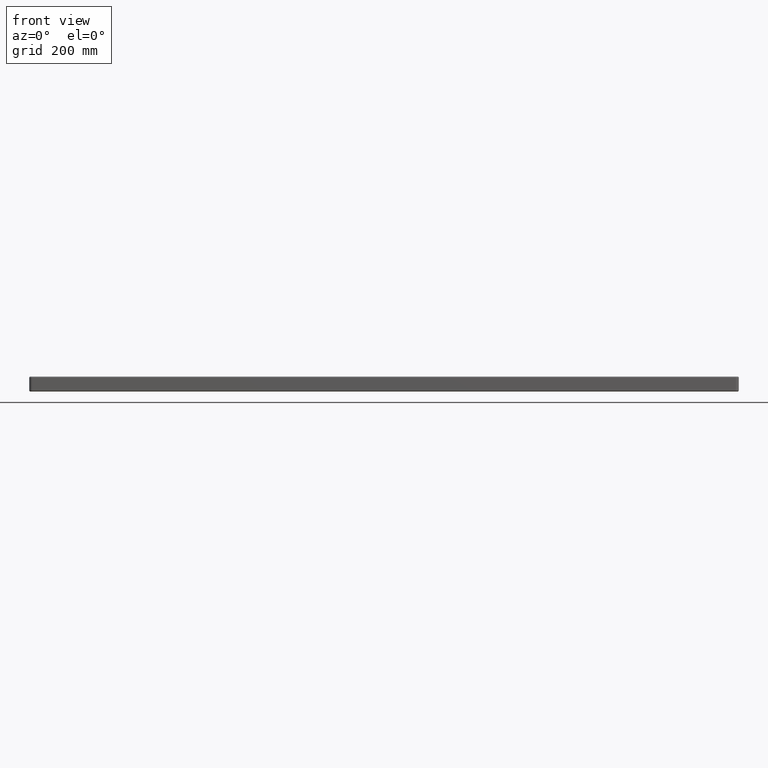
[diagram: clean part render]
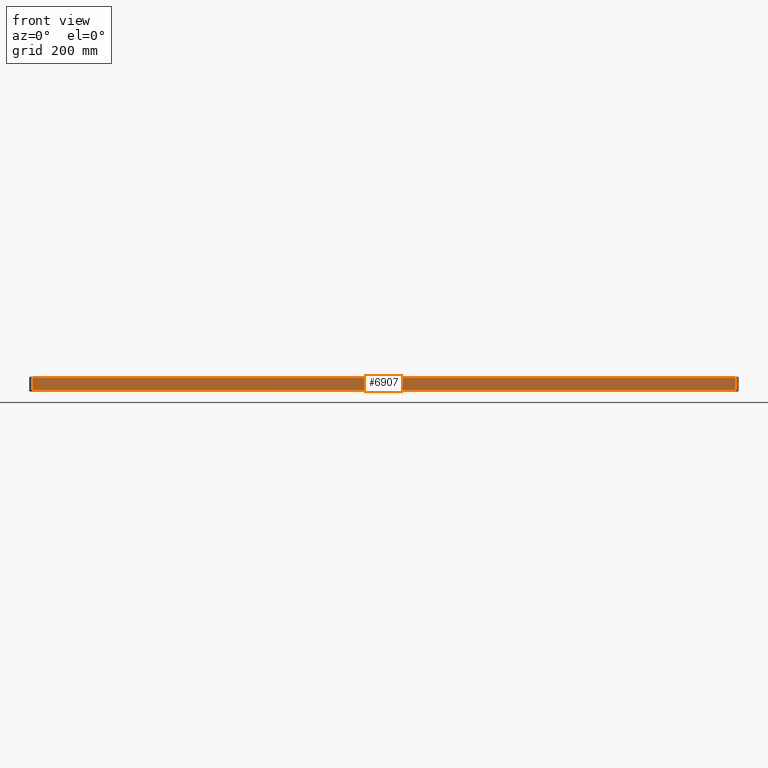
[diagram: same view with one face highlighted and labeled with its STEP entity id]
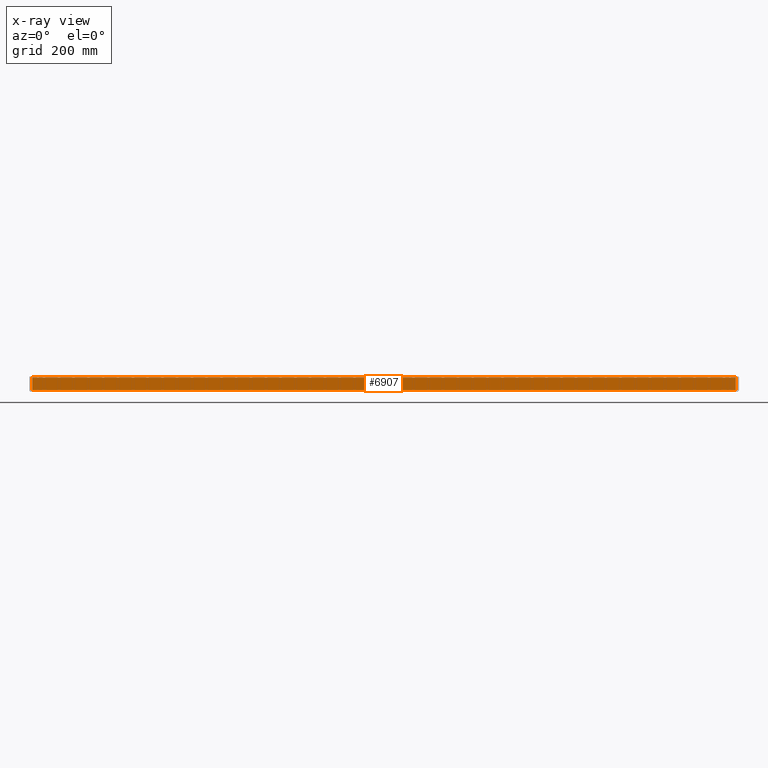
[diagram: x-ray of the same camera — body ghosted, the highlighted face saturated]
A machine part, front view. The second image highlights one B-rep face of the part: STEP entity #6907.
The next image is the same camera in x-ray: the body ghosted, the highlighted face saturated — about 0% of this face is hidden behind the body in this view.
In plain terms, the highlighted planar face has unit normal (0, -1, 0).
Its self-contained STEP definition (entity closure, byte-faithful):
#1188 = VERTEX_POINT ( 'NONE', #36521 ) ;
#1227 = FACE_OUTER_BOUND ( 'NONE', #1305, .T. ) ;
#1279 = EDGE_CURVE ( 'NONE', #28596, #35464, #17304, .T. ) ;
#1305 = EDGE_LOOP ( 'NONE', ( #32418, #16003, #16517, #27320 ) ) ;
#1317 = VERTEX_POINT ( 'NONE', #22418 ) ;
#2954 = CARTESIAN_POINT ( 'NONE',  ( 5.000000000000000000, 0.0000000000000000000, -23.39999999999999900 ) ) ;
#3201 = VECTOR ( 'NONE', #8951, 1000.000000000000000 ) ;
#4222 = DIRECTION ( 'NONE',  ( -0.0000000000000000000, 0.0000000000000000000, 1.000000000000000000 ) ) ;
#5048 = EDGE_CURVE ( 'NONE', #1317, #1188, #7635, .T. ) ;
#5749 = PLANE ( 'NONE',  #19468 ) ;
#6671 = EDGE_CURVE ( 'NONE', #35464, #1317, #9479, .T. ) ;
#6907 = ADVANCED_FACE ( 'NONE', ( #1227 ), #5749, .T. ) ;
#7635 = LINE ( 'NONE', #32059, #15388 ) ;
#8854 = CARTESIAN_POINT ( 'NONE',  ( 0.0000000000000000000, 0.0000000000000000000, -25.39999999999999900 ) ) ;
#8951 = DIRECTION ( 'NONE',  ( -1.000000000000000000, -0.0000000000000000000, 0.0000000000000000000 ) ) ;
#9479 = LINE ( 'NONE', #24497, #33546 ) ;
#11386 = LINE ( 'NONE', #11654, #3201 ) ;
#11654 = CARTESIAN_POINT ( 'NONE',  ( 5.000000000000000000, 0.0000000000000000000, -2.000000000000000000 ) ) ;
#14859 = CARTESIAN_POINT ( 'NONE',  ( 5.000000000000000000, 0.0000000000000000000, -2.000000000000001800 ) ) ;
#15388 = VECTOR ( 'NONE', #4222, 1000.000000000000000 ) ;
#16003 = ORIENTED_EDGE ( 'NONE', *, *, #6671, .T. ) ;
#16517 = ORIENTED_EDGE ( 'NONE', *, *, #5048, .T. ) ;
#17304 = LINE ( 'NONE', #19187, #32224 ) ;
#19187 = CARTESIAN_POINT ( 'NONE',  ( 5.000000000000000000, 0.0000000000000000000, -25.39999999999999900 ) ) ;
#19468 = AXIS2_PLACEMENT_3D ( 'NONE', #8854, #21270, #33591 ) ;
#21270 = DIRECTION ( 'NONE',  ( 0.0000000000000000000, -1.000000000000000000, 0.0000000000000000000 ) ) ;
#22418 = CARTESIAN_POINT ( 'NONE',  ( 1195.000000000000000, 0.0000000000000000000, -23.39999999999999900 ) ) ;
#24497 = CARTESIAN_POINT ( 'NONE',  ( 0.0000000000000000000, 0.0000000000000000000, -23.39999999999999900 ) ) ;
#27320 = ORIENTED_EDGE ( 'NONE', *, *, #30443, .T. ) ;
#28596 = VERTEX_POINT ( 'NONE', #14859 ) ;
#30443 = EDGE_CURVE ( 'NONE', #1188, #28596, #11386, .T. ) ;
#32059 = CARTESIAN_POINT ( 'NONE',  ( 1195.000000000000000, 0.0000000000000000000, -25.39999999999999900 ) ) ;
#32224 = VECTOR ( 'NONE', #36919, 1000.000000000000000 ) ;
#32418 = ORIENTED_EDGE ( 'NONE', *, *, #1279, .T. ) ;
#33367 = DIRECTION ( 'NONE',  ( 1.000000000000000000, 0.0000000000000000000, 0.0000000000000000000 ) ) ;
#33546 = VECTOR ( 'NONE', #33367, 1000.000000000000000 ) ;
#33591 = DIRECTION ( 'NONE',  ( 0.0000000000000000000, -0.0000000000000000000, -1.000000000000000000 ) ) ;
#35464 = VERTEX_POINT ( 'NONE', #2954 ) ;
#36521 = CARTESIAN_POINT ( 'NONE',  ( 1195.000000000000000, 0.0000000000000000000, -2.000000000000001800 ) ) ;
#36919 = DIRECTION ( 'NONE',  ( -0.0000000000000000000, -0.0000000000000000000, -1.000000000000000000 ) ) ;